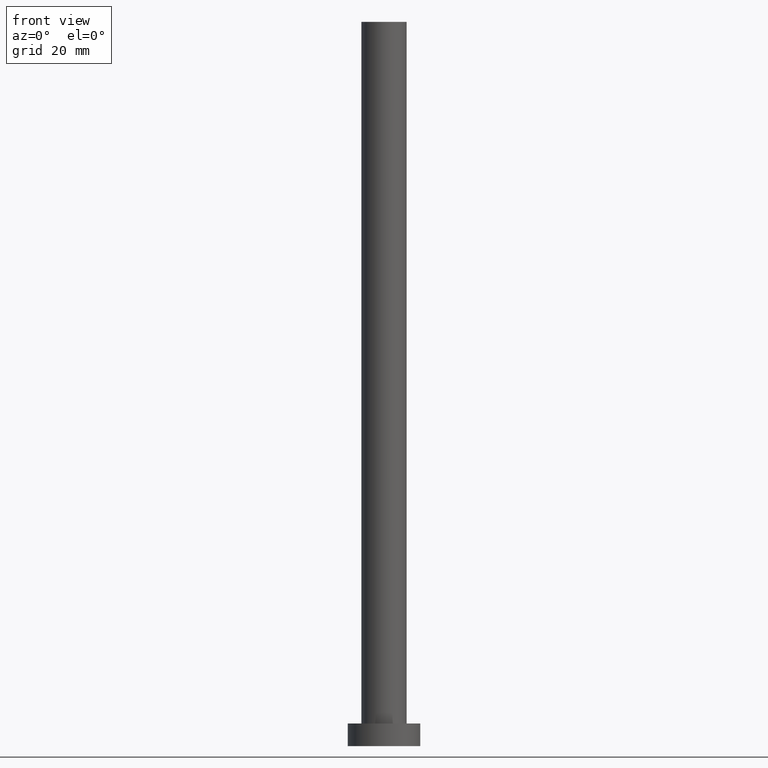
[diagram: clean part render]
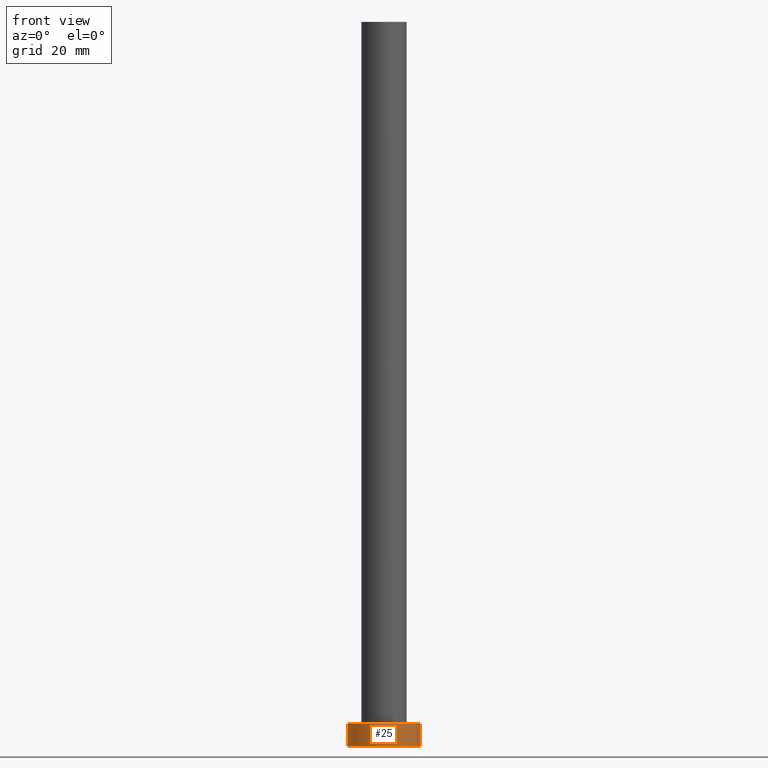
[diagram: same view with one face highlighted and labeled with its STEP entity id]
A machine part, front view. The second image highlights one B-rep face of the part: STEP entity #25.
In plain terms, the highlighted cylindrical surface (edge-blend (fillet) strip) has radius 8 mm, axis along (-0, -0, -1).
Its self-contained STEP definition (entity closure, byte-faithful):
#4 = CARTESIAN_POINT ( 'NONE',  ( 0.000000000000000000, 0.000000000000000000, 5.000000000000000000 ) ) ;
#12 = VECTOR ( 'NONE', #132, 1000.000000000000000 ) ;
#14 = DIRECTION ( 'NONE',  ( 1.000000000000000000, 0.000000000000000000, 0.000000000000000000 ) ) ;
#22 = VECTOR ( 'NONE', #220, 1000.000000000000000 ) ;
#23 = CARTESIAN_POINT ( 'NONE',  ( -8.000000000000000000, 0.000000000000000000, 0.000000000000000000 ) ) ;
#24 = VERTEX_POINT ( 'NONE', #23 ) ;
#25 = ADVANCED_FACE ( 'NONE', ( #225 ), #60, .T. ) ;
#39 = CIRCLE ( 'NONE', #149, 8.000000000000000000 ) ;
#45 = CARTESIAN_POINT ( 'NONE',  ( -8.000000000000000000, 0.000000000000000000, 5.000000000000000000 ) ) ;
#53 = CIRCLE ( 'NONE', #200, 8.000000000000000000 ) ;
#60 = CYLINDRICAL_SURFACE ( 'NONE', #231, 8.000000000000000000 ) ;
#67 = CARTESIAN_POINT ( 'NONE',  ( 8.000000000000000000, 9.797174393178825657E-16, 5.000000000000000000 ) ) ;
#69 = DIRECTION ( 'NONE',  ( 0.000000000000000000, 0.000000000000000000, 1.000000000000000000 ) ) ;
#77 = EDGE_CURVE ( 'NONE', #124, #24, #142, .T. ) ;
#81 = DIRECTION ( 'NONE',  ( -1.000000000000000000, 0.000000000000000000, 0.000000000000000000 ) ) ;
#84 = DIRECTION ( 'NONE',  ( 1.000000000000000000, 0.000000000000000000, 0.000000000000000000 ) ) ;
#86 = EDGE_CURVE ( 'NONE', #124, #122, #53, .T. ) ;
#107 = DIRECTION ( 'NONE',  ( -0.000000000000000000, -0.000000000000000000, -1.000000000000000000 ) ) ;
#108 = ORIENTED_EDGE ( 'NONE', *, *, #118, .F. ) ;
#109 = ORIENTED_EDGE ( 'NONE', *, *, #141, .T. ) ;
#118 = EDGE_CURVE ( 'NONE', #122, #180, #203, .T. ) ;
#122 = VERTEX_POINT ( 'NONE', #189 ) ;
#124 = VERTEX_POINT ( 'NONE', #190 ) ;
#131 = CARTESIAN_POINT ( 'NONE',  ( 8.000000000000000000, 9.797174393178825657E-16, 0.000000000000000000 ) ) ;
#132 = DIRECTION ( 'NONE',  ( -0.000000000000000000, -0.000000000000000000, -1.000000000000000000 ) ) ;
#141 = EDGE_CURVE ( 'NONE', #24, #180, #39, .T. ) ;
#142 = LINE ( 'NONE', #45, #22 ) ;
#144 = CARTESIAN_POINT ( 'NONE',  ( 0.000000000000000000, 0.000000000000000000, 5.000000000000000000 ) ) ;
#149 = AXIS2_PLACEMENT_3D ( 'NONE', #214, #69, #14 ) ;
#158 = EDGE_LOOP ( 'NONE', ( #108, #198, #179, #109 ) ) ;
#179 = ORIENTED_EDGE ( 'NONE', *, *, #77, .T. ) ;
#180 = VERTEX_POINT ( 'NONE', #131 ) ;
#184 = DIRECTION ( 'NONE',  ( 0.000000000000000000, 0.000000000000000000, 1.000000000000000000 ) ) ;
#189 = CARTESIAN_POINT ( 'NONE',  ( 8.000000000000000000, 9.797174393178825657E-16, 5.000000000000000000 ) ) ;
#190 = CARTESIAN_POINT ( 'NONE',  ( -8.000000000000000000, 0.000000000000000000, 5.000000000000000000 ) ) ;
#198 = ORIENTED_EDGE ( 'NONE', *, *, #86, .F. ) ;
#200 = AXIS2_PLACEMENT_3D ( 'NONE', #4, #184, #84 ) ;
#203 = LINE ( 'NONE', #67, #12 ) ;
#214 = CARTESIAN_POINT ( 'NONE',  ( 0.000000000000000000, 0.000000000000000000, 0.000000000000000000 ) ) ;
#220 = DIRECTION ( 'NONE',  ( -0.000000000000000000, -0.000000000000000000, -1.000000000000000000 ) ) ;
#225 = FACE_OUTER_BOUND ( 'NONE', #158, .T. ) ;
#231 = AXIS2_PLACEMENT_3D ( 'NONE', #144, #107, #81 ) ;